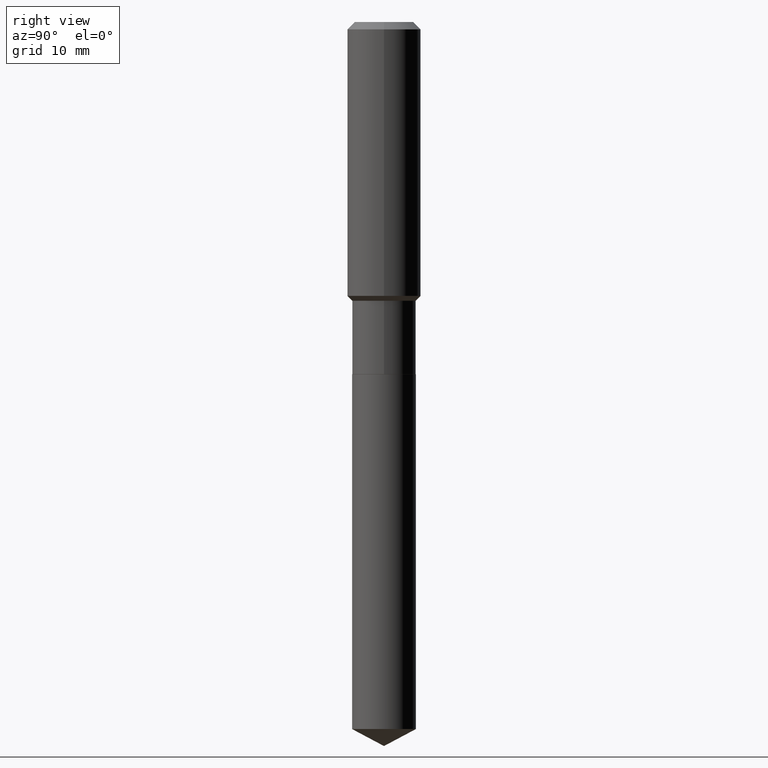
[diagram: clean part render]
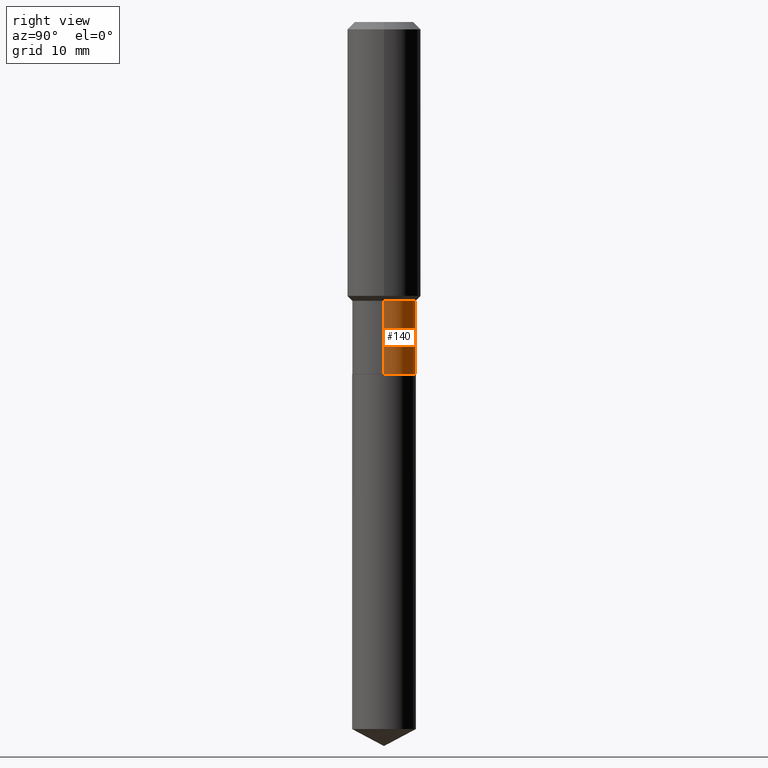
[diagram: same view with one face highlighted and labeled with its STEP entity id]
A machine part, right view. The second image highlights one B-rep face of the part: STEP entity #140.
In plain terms, the highlighted cylindrical surface (edge-blend (fillet) strip) has radius 5.2006 mm, axis along (-0, 0, 1).
Its self-contained STEP definition (entity closure, byte-faithful):
#5 = EDGE_CURVE ( 'NONE', #31, #87, #360, .T. ) ;
#23 = DIRECTION ( 'NONE',  ( -2.445468806185136877E-29, 3.491481338843145188E-15, 1.000000000000000000 ) ) ;
#31 = VERTEX_POINT ( 'NONE', #408 ) ;
#40 = CARTESIAN_POINT ( 'NONE',  ( -0.2047499999999999043, -5.612620274617487685E-15, -1.788999999999999480 ) ) ;
#73 = CARTESIAN_POINT ( 'NONE',  ( 4.374943694265207941E-29, -6.246260115190385105E-15, -1.788999999999999480 ) ) ;
#74 = CYLINDRICAL_SURFACE ( 'NONE', #393, 0.2047499999999999598 ) ;
#87 = VERTEX_POINT ( 'NONE', #138 ) ;
#107 = EDGE_LOOP ( 'NONE', ( #128, #282, #158, #278 ) ) ;
#127 = CARTESIAN_POINT ( 'NONE',  ( -0.2047499999999999598, 1.454836251468804845E-15, -1.007151959729691630E-29 ) ) ;
#128 = ORIENTED_EDGE ( 'NONE', *, *, #135, .T. ) ;
#135 = EDGE_CURVE ( 'NONE', #31, #162, #284, .T. ) ;
#138 = CARTESIAN_POINT ( 'NONE',  ( 0.2047499999999999043, -7.676021723446647015E-15, -1.788999999999999480 ) ) ;
#140 = ADVANCED_FACE ( 'NONE', ( #413 ), #74, .T. ) ;
#158 = ORIENTED_EDGE ( 'NONE', *, *, #416, .F. ) ;
#162 = VERTEX_POINT ( 'NONE', #356 ) ;
#177 = DIRECTION ( 'NONE',  ( -2.445468806185136597E-29, 3.491481338843145583E-15, 1.000000000000000000 ) ) ;
#179 = DIRECTION ( 'NONE',  ( 1.000000000000000000, -6.982962677686265922E-15, 0.000000000000000000 ) ) ;
#215 = CARTESIAN_POINT ( 'NONE',  ( 5.525292220694696181E-29, -7.888652936982201138E-15, -2.259399999999999409 ) ) ;
#221 = DIRECTION ( 'NONE',  ( -2.445468806185136597E-29, 3.491481338843145583E-15, 1.000000000000000000 ) ) ;
#256 = DIRECTION ( 'NONE',  ( 1.000000000000000000, -6.982962677686263555E-15, 0.000000000000000000 ) ) ;
#278 = ORIENTED_EDGE ( 'NONE', *, *, #5, .F. ) ;
#282 = ORIENTED_EDGE ( 'NONE', *, *, #370, .T. ) ;
#284 = CIRCLE ( 'NONE', #336, 0.2047499999999999876 ) ;
#318 = DIRECTION ( 'NONE',  ( -2.445468806185136877E-29, 3.491481338843145188E-15, 1.000000000000000000 ) ) ;
#336 = AXIS2_PLACEMENT_3D ( 'NONE', #215, #177, #256 ) ;
#348 = CIRCLE ( 'NONE', #381, 0.2047499999999999043 ) ;
#349 = LINE ( 'NONE', #127, #418 ) ;
#356 = CARTESIAN_POINT ( 'NONE',  ( -0.2047499999999999876, -5.612620274617487685E-15, -2.259399999999999409 ) ) ;
#360 = LINE ( 'NONE', #361, #454 ) ;
#361 = CARTESIAN_POINT ( 'NONE',  ( 0.2047499999999999598, -1.429761608256262896E-15, 9.983971948442177163E-30 ) ) ;
#370 = EDGE_CURVE ( 'NONE', #162, #470, #349, .T. ) ;
#375 = CARTESIAN_POINT ( 'NONE',  ( 0.000000000000000000, 0.000000000000000000, 0.000000000000000000 ) ) ;
#381 = AXIS2_PLACEMENT_3D ( 'NONE', #73, #221, #179 ) ;
#393 = AXIS2_PLACEMENT_3D ( 'NONE', #375, #457, #415 ) ;
#408 = CARTESIAN_POINT ( 'NONE',  ( 0.2047499999999999876, -9.318414545238462259E-15, -2.259399999999999409 ) ) ;
#413 = FACE_OUTER_BOUND ( 'NONE', #107, .T. ) ;
#415 = DIRECTION ( 'NONE',  ( 1.000000000000000000, -6.982962677686266711E-15, 4.876176775795936353E-29 ) ) ;
#416 = EDGE_CURVE ( 'NONE', #87, #470, #348, .T. ) ;
#418 = VECTOR ( 'NONE', #23, 39.37007874015748143 ) ;
#454 = VECTOR ( 'NONE', #318, 39.37007874015748143 ) ;
#457 = DIRECTION ( 'NONE',  ( -2.445468806185136597E-29, 3.491481338843145583E-15, 1.000000000000000000 ) ) ;
#470 = VERTEX_POINT ( 'NONE', #40 ) ;